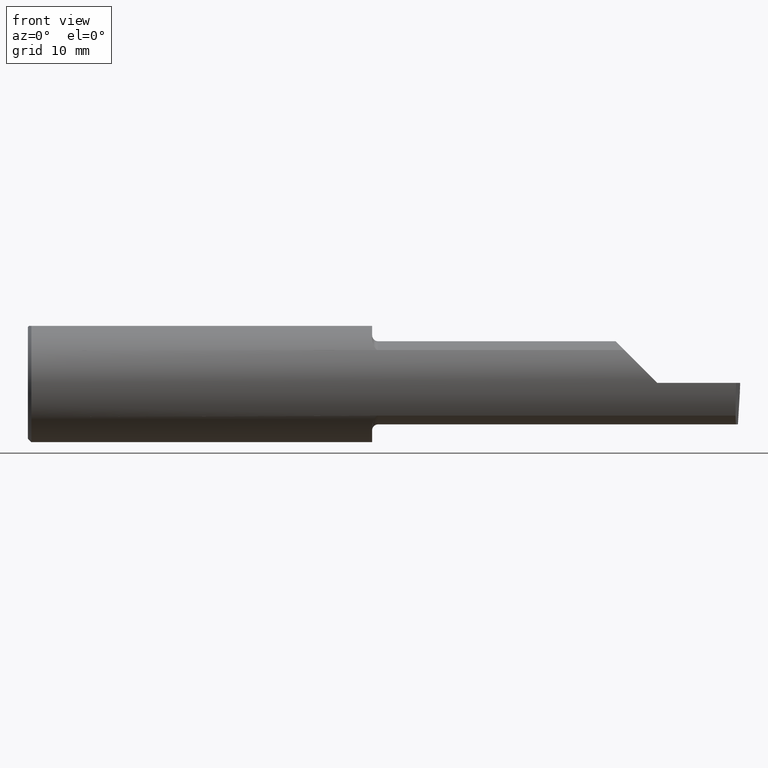
[diagram: clean part render]
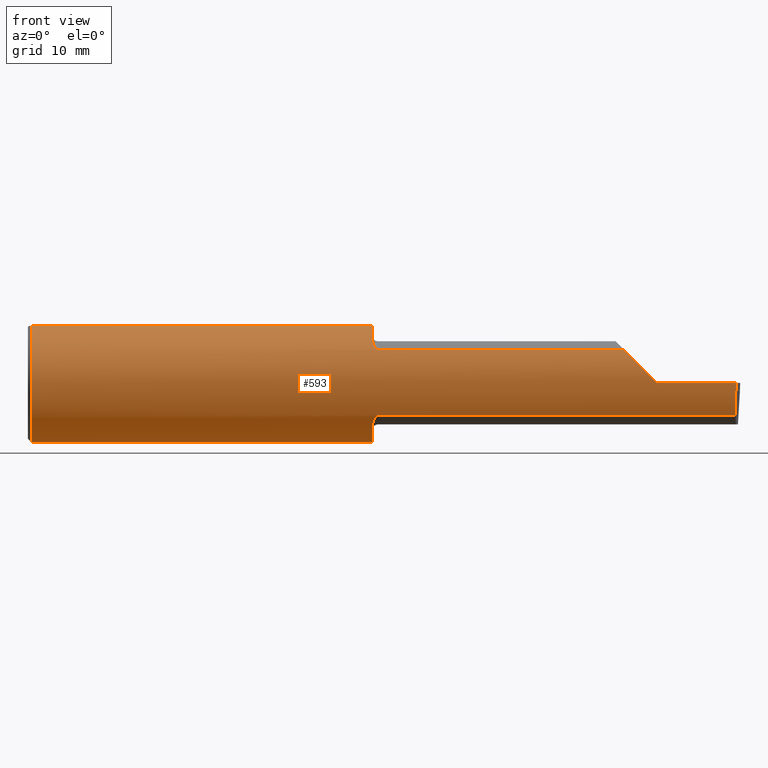
[diagram: same view with one face highlighted and labeled with its STEP entity id]
A machine part, front view. The second image highlights one B-rep face of the part: STEP entity #593.
In plain terms, the highlighted cylindrical surface (partial cylindrical patch) has radius 6.3462 mm, axis along (-1, -0, -0).
Its self-contained STEP definition (entity closure, byte-faithful):
#1 = EDGE_CURVE ( 'NONE', #758, #406, #473, .T. ) ;
#3 = AXIS2_PLACEMENT_3D ( 'NONE', #40, #231, #774 ) ;
#17 = B_SPLINE_CURVE_WITH_KNOTS ( 'NONE', 3,
 ( #380, #457, #759, #579, #151, #18, #387, #635, #332, #762, #214, #453 ),
 .UNSPECIFIED., .F., .F.,
 ( 4, 2, 2, 2, 2, 4 ),
 ( 1.964491429041408085E-07, 0.0001260981470478291519, 0.0002519998449527541240, 0.0005038032407626173497, 0.001007410032382343584, 0.002014623615621801908 ),
 .UNSPECIFIED. ) ;
#18 = CARTESIAN_POINT ( 'NONE',  ( 1.464302603425052585, -0.2041009206016214661, -0.1441313430770039816 ) ) ;
#22 = VERTEX_POINT ( 'NONE', #52 ) ;
#34 = CARTESIAN_POINT ( 'NONE',  ( 2.977412177158956563, -0.2496672875357696664, -0.1999314649951114686 ) ) ;
#39 = DIRECTION ( 'NONE',  ( 1.000000000000000000, 0.000000000000000000, 0.000000000000000000 ) ) ;
#40 = CARTESIAN_POINT ( 'NONE',  ( 0.01499999999999999944, 0.000000000000000000, 0.000000000000000000 ) ) ;
#42 = CARTESIAN_POINT ( 'NONE',  ( 2.174500000000000099, -0.2080850024789291652, -0.1382955322609665250 ) ) ;
#43 = CARTESIAN_POINT ( 'NONE',  ( 0.000000000000000000, -0.06997856814768359246, 0.2398500000000000076 ) ) ;
#44 = CIRCLE ( 'NONE', #56, 0.2498499999999999888 ) ;
#52 = CARTESIAN_POINT ( 'NONE',  ( 2.982644377562602589, -0.2498499999999999610, 1.813681607540488003E-17 ) ) ;
#56 = AXIS2_PLACEMENT_3D ( 'NONE', #282, #160, #95 ) ;
#59 = CARTESIAN_POINT ( 'NONE',  ( 1.450000000000000178, -0.1616050818046604332, 0.1905487340154980169 ) ) ;
#65 = CARTESIAN_POINT ( 'NONE',  ( 2.980479240051444378, -0.2080850024789291652, -0.1382955322609665250 ) ) ;
#70 = CARTESIAN_POINT ( 'NONE',  ( 1.474999999999999867, -0.2080850024789292485, 0.1382955322609664972 ) ) ;
#71 = CARTESIAN_POINT ( 'NONE',  ( 4.499279347985559139E-32, -0.2498499999999999610, 3.673940397442053459E-16 ) ) ;
#74 = CARTESIAN_POINT ( 'NONE',  ( 2.511704467739034552, -0.2080850024789292485, 0.1382955322609664139 ) ) ;
#86 = VERTEX_POINT ( 'NONE', #65 ) ;
#90 = CYLINDRICAL_SURFACE ( 'NONE', #255, 0.2498499999999999888 ) ;
#93 = CARTESIAN_POINT ( 'NONE',  ( 0.01499999999999999944, 0.000000000000000000, -0.2498499999999999888 ) ) ;
#95 = DIRECTION ( 'NONE',  ( 0.000000000000000000, 0.000000000000000000, 1.000000000000000000 ) ) ;
#98 = CARTESIAN_POINT ( 'NONE',  ( 2.980602402804240381, -0.2354324170447328890, -0.09714751587400699551 ) ) ;
#101 = CARTESIAN_POINT ( 'NONE',  ( 1.450000000000000178, 0.06997856814768360634, 0.2398500000000000076 ) ) ;
#108 = ORIENTED_EDGE ( 'NONE', *, *, #218, .F. ) ;
#110 = DIRECTION ( 'NONE',  ( -1.000000000000000000, -0.000000000000000000, -0.000000000000000000 ) ) ;
#115 = ORIENTED_EDGE ( 'NONE', *, *, #727, .T. ) ;
#118 = CARTESIAN_POINT ( 'NONE',  ( 1.474999999999999867, -0.2080850024789292485, 0.1382955322609664972 ) ) ;
#119 = AXIS2_PLACEMENT_3D ( 'NONE', #175, #125, #737 ) ;
#124 = EDGE_CURVE ( 'NONE', #22, #259, #161, .T. ) ;
#125 = DIRECTION ( 'NONE',  ( 1.000000000000000000, 0.000000000000000000, 0.000000000000000000 ) ) ;
#141 = ORIENTED_EDGE ( 'NONE', *, *, #582, .F. ) ;
#143 = CARTESIAN_POINT ( 'NONE',  ( 2.980479240051444378, -0.2080850024789291652, -0.1382955322609665250 ) ) ;
#151 = CARTESIAN_POINT ( 'NONE',  ( 1.467611663768900065, -0.2061921161193830399, -0.1411075319999376410 ) ) ;
#156 = DIRECTION ( 'NONE',  ( 0.000000000000000000, 0.000000000000000000, 1.000000000000000000 ) ) ;
#160 = DIRECTION ( 'NONE',  ( -1.000000000000000000, -0.000000000000000000, -0.000000000000000000 ) ) ;
#161 = LINE ( 'NONE', #71, #223 ) ;
#168 = CARTESIAN_POINT ( 'NONE',  ( 1.450000000000000178, -0.1665641037263009272, 0.1863429692936361126 ) ) ;
#174 = CARTESIAN_POINT ( 'NONE',  ( 1.452968662030528657, -0.1849684355203377595, 0.1680843977756267538 ) ) ;
#175 = CARTESIAN_POINT ( 'NONE',  ( 1.450000000000000178, 0.000000000000000000, 0.000000000000000000 ) ) ;
#180 = VERTEX_POINT ( 'NONE', #93 ) ;
#181 = CARTESIAN_POINT ( 'NONE',  ( 1.451849548162864600, -0.1805300287242674606, 0.1728462070311780341 ) ) ;
#183 = ORIENTED_EDGE ( 'NONE', *, *, #777, .F. ) ;
#186 = VECTOR ( 'NONE', #537, 39.37007874015748143 ) ;
#193 =( BOUNDED_CURVE ( )  B_SPLINE_CURVE ( 3, ( #143, #98, #689, #327 ),
 .UNSPECIFIED., .F., .T. ) 
 B_SPLINE_CURVE_WITH_KNOTS ( ( 4, 4 ),
 ( 0.05713034791898994463, 0.6418805321923491958 ),
 .UNSPECIFIED. ) 
 CURVE ( )  GEOMETRIC_REPRESENTATION_ITEM ( )  RATIONAL_B_SPLINE_CURVE ( ( 1.000000000000000000, 0.9717080070095445166, 0.9717080070095445166, 1.000000000000000000 ) ) 
 REPRESENTATION_ITEM ( '' )  );
#197 = CARTESIAN_POINT ( 'NONE',  ( 1.450000000000000178, 0.000000000000000000, 0.000000000000000000 ) ) ;
#207 = EDGE_CURVE ( 'NONE', #86, #219, #193, .T. ) ;
#213 = ORIENTED_EDGE ( 'NONE', *, *, #614, .F. ) ;
#214 = CARTESIAN_POINT ( 'NONE',  ( 1.450000000000000400, -0.1716188362992556171, -0.1820560320165480195 ) ) ;
#216 = DIRECTION ( 'NONE',  ( -1.000000000000000000, -0.000000000000000000, -0.000000000000000000 ) ) ;
#218 = EDGE_CURVE ( 'NONE', #378, #337, #750, .T. ) ;
#219 = VERTEX_POINT ( 'NONE', #322 ) ;
#223 = VECTOR ( 'NONE', #753, 39.37007874015748143 ) ;
#229 = LINE ( 'NONE', #34, #509 ) ;
#231 = DIRECTION ( 'NONE',  ( -1.000000000000000000, -0.000000000000000000, -0.000000000000000000 ) ) ;
#234 = LINE ( 'NONE', #470, #621 ) ;
#255 = AXIS2_PLACEMENT_3D ( 'NONE', #335, #216, #156 ) ;
#259 = VERTEX_POINT ( 'NONE', #382 ) ;
#262 = DIRECTION ( 'NONE',  ( 1.000000000000000000, 0.000000000000000000, 0.000000000000000000 ) ) ;
#282 = CARTESIAN_POINT ( 'NONE',  ( 0.01499999999999999944, 0.000000000000000000, 0.000000000000000000 ) ) ;
#287 = DIRECTION ( 'NONE',  ( -1.000000000000000000, -0.000000000000000000, -0.000000000000000000 ) ) ;
#288 = CARTESIAN_POINT ( 'NONE',  ( 1.458182335268384699, -0.1972192205116131691, 0.1535061413537209540 ) ) ;
#310 = EDGE_CURVE ( 'NONE', #180, #456, #409, .T. ) ;
#317 = EDGE_CURVE ( 'NONE', #337, #718, #660, .T. ) ;
#320 = LINE ( 'NONE', #42, #480 ) ;
#322 = CARTESIAN_POINT ( 'NONE',  ( 2.982632426700502215, -0.2498495826666993769, -0.0004566631977452191267 ) ) ;
#327 = CARTESIAN_POINT ( 'NONE',  ( 2.982632426700502215, -0.2498495826666993769, -0.0004566631977452191267 ) ) ;
#332 = CARTESIAN_POINT ( 'NONE',  ( 1.456147634408387903, -0.1932733126899460752, -0.1584637047788196307 ) ) ;
#334 = EDGE_CURVE ( 'NONE', #406, #460, #757, .T. ) ;
#335 = CARTESIAN_POINT ( 'NONE',  ( 0.000000000000000000, 0.000000000000000000, 0.000000000000000000 ) ) ;
#337 = VERTEX_POINT ( 'NONE', #101 ) ;
#342 = EDGE_CURVE ( 'NONE', #456, #758, #408, .T. ) ;
#351 = CARTESIAN_POINT ( 'NONE',  ( 2.650000000000000355, -0.2498499999999999610, 4.286263797015727350E-17 ) ) ;
#373 = CARTESIAN_POINT ( 'NONE',  ( 0.01499999999999999944, -0.06997856814768359246, 0.2398500000000000076 ) ) ;
#378 = VERTEX_POINT ( 'NONE', #498 ) ;
#380 = CARTESIAN_POINT ( 'NONE',  ( 1.474999999999999867, -0.2080850024789291375, -0.1382955322609665805 ) ) ;
#382 = CARTESIAN_POINT ( 'NONE',  ( 2.650000000000000355, -0.2498499999999999610, 4.286263797015727350E-17 ) ) ;
#387 = CARTESIAN_POINT ( 'NONE',  ( 1.462579853086618975, -0.2024300470081735470, -0.1464774911482684128 ) ) ;
#396 = AXIS2_PLACEMENT_3D ( 'NONE', #197, #262, #437 ) ;
#405 = CARTESIAN_POINT ( 'NONE',  ( 1.450000000000000178, -0.1616050818046604332, 0.1905487340154980169 ) ) ;
#406 = VERTEX_POINT ( 'NONE', #59 ) ;
#408 = LINE ( 'NONE', #43, #186 ) ;
#409 = CIRCLE ( 'NONE', #3, 0.2498499999999999888 ) ;
#412 = CARTESIAN_POINT ( 'NONE',  ( 0.01499999999999998036, 0.06997856814768359246, 0.2398500000000000076 ) ) ;
#413 = CARTESIAN_POINT ( 'NONE',  ( 1.471718393013769166, -0.2077830475237242291, 0.1387513848711936504 ) ) ;
#417 = CARTESIAN_POINT ( 'NONE',  ( 1.456159563508734545, -0.1933019864360849827, 0.1584298865564831571 ) ) ;
#437 = DIRECTION ( 'NONE',  ( 0.000000000000000000, 0.000000000000000000, -1.000000000000000000 ) ) ;
#448 = ORIENTED_EDGE ( 'NONE', *, *, #124, .T. ) ;
#453 = CARTESIAN_POINT ( 'NONE',  ( 1.450000000000000178, -0.1616050818046604332, -0.1905487340154980169 ) ) ;
#456 = VERTEX_POINT ( 'NONE', #373 ) ;
#457 = CARTESIAN_POINT ( 'NONE',  ( 1.473318040126429640, -0.2080850024789291375, -0.1382955322609666915 ) ) ;
#460 = VERTEX_POINT ( 'NONE', #70 ) ;
#470 = CARTESIAN_POINT ( 'NONE',  ( 2.174500000000000099, -0.2080850024789291652, 0.1382955322609665250 ) ) ;
#473 = CIRCLE ( 'NONE', #119, 0.2498499999999999888 ) ;
#476 = CARTESIAN_POINT ( 'NONE',  ( 1.450000000000000178, -0.06997856814768374512, 0.2398500000000000076 ) ) ;
#480 = VECTOR ( 'NONE', #287, 39.37007874015748143 ) ;
#498 = CARTESIAN_POINT ( 'NONE',  ( 1.450000000000000178, -0.1616050818046604332, -0.1905487340154980169 ) ) ;
#502 = ORIENTED_EDGE ( 'NONE', *, *, #310, .F. ) ;
#508 =( BOUNDED_CURVE ( )  B_SPLINE_CURVE ( 3, ( #351, #659, #778, #599 ),
 .UNSPECIFIED., .F., .T. ) 
 B_SPLINE_CURVE_WITH_KNOTS ( ( 4, 4 ),
 ( 4.712388980384689674, 5.298966915116346321 ),
 .UNSPECIFIED. ) 
 CURVE ( )  GEOMETRIC_REPRESENTATION_ITEM ( )  RATIONAL_B_SPLINE_CURVE ( ( 1.000000000000000000, 0.9715321379117538569, 0.9715321379117538569, 1.000000000000000000 ) ) 
 REPRESENTATION_ITEM ( '' )  );
#509 = VECTOR ( 'NONE', #654, 39.37007874015748854 ) ;
#528 = CARTESIAN_POINT ( 'NONE',  ( 1.462616400345755574, -0.2024684335577103256, 0.1464246884265637816 ) ) ;
#531 = CARTESIAN_POINT ( 'NONE',  ( 1.474999999999999867, -0.2080850024789291375, -0.1382955322609665805 ) ) ;
#532 = CARTESIAN_POINT ( 'NONE',  ( 1.468876997637614590, -0.2068363917296601184, 0.1401586554522229189 ) ) ;
#537 = DIRECTION ( 'NONE',  ( 1.000000000000000000, 0.000000000000000000, 0.000000000000000000 ) ) ;
#543 = ORIENTED_EDGE ( 'NONE', *, *, #788, .T. ) ;
#579 = CARTESIAN_POINT ( 'NONE',  ( 1.468863362722770516, -0.2068301641248770639, -0.1401678546132359982 ) ) ;
#582 = EDGE_CURVE ( 'NONE', #682, #378, #17, .T. ) ;
#589 = ORIENTED_EDGE ( 'NONE', *, *, #1, .F. ) ;
#593 = ADVANCED_FACE ( 'NONE', ( #638 ), #90, .T. ) ;
#599 = CARTESIAN_POINT ( 'NONE',  ( 2.511704467739034552, -0.2080850024789292485, 0.1382955322609664139 ) ) ;
#609 = VERTEX_POINT ( 'NONE', #74 ) ;
#614 = EDGE_CURVE ( 'NONE', #86, #682, #320, .T. ) ;
#620 = ORIENTED_EDGE ( 'NONE', *, *, #334, .F. ) ;
#621 = VECTOR ( 'NONE', #39, 39.37007874015748143 ) ;
#635 = CARTESIAN_POINT ( 'NONE',  ( 1.458176740666625282, -0.1972027065478073327, -0.1535263573771913914 ) ) ;
#638 = FACE_OUTER_BOUND ( 'NONE', #690, .T. ) ;
#640 = EDGE_CURVE ( 'NONE', #460, #609, #234, .T. ) ;
#654 = DIRECTION ( 'NONE',  ( 0.02616100201822768243, -0.0009135623211515309658, 0.9996573249755575929 ) ) ;
#659 = CARTESIAN_POINT ( 'NONE',  ( 2.600434159100403875, -0.2498499999999999055, 0.04956584089959691769 ) ) ;
#660 = LINE ( 'NONE', #714, #722 ) ;
#665 = ORIENTED_EDGE ( 'NONE', *, *, #207, .T. ) ;
#682 = VERTEX_POINT ( 'NONE', #531 ) ;
#689 = CARTESIAN_POINT ( 'NONE',  ( 2.981341028891338230, -0.2497592792593404665, -0.04986346618387292595 ) ) ;
#690 = EDGE_LOOP ( 'NONE', ( #543, #448, #115, #761, #620, #589, #768, #502, #183, #694, #108, #141, #213, #665 ) ) ;
#694 = ORIENTED_EDGE ( 'NONE', *, *, #317, .F. ) ;
#710 = CARTESIAN_POINT ( 'NONE',  ( 1.464343523383978996, -0.2041337200786083328, 0.1440846171672511833 ) ) ;
#714 = CARTESIAN_POINT ( 'NONE',  ( 0.000000000000000000, 0.06997856814768359246, 0.2398500000000000076 ) ) ;
#718 = VERTEX_POINT ( 'NONE', #412 ) ;
#722 = VECTOR ( 'NONE', #110, 39.37007874015748143 ) ;
#727 = EDGE_CURVE ( 'NONE', #259, #609, #508, .T. ) ;
#732 = CARTESIAN_POINT ( 'NONE',  ( 1.450367168219774294, -0.1713400252854603567, 0.1819601557798505298 ) ) ;
#737 = DIRECTION ( 'NONE',  ( 0.000000000000000000, 0.000000000000000000, -1.000000000000000000 ) ) ;
#750 = CIRCLE ( 'NONE', #396, 0.2498499999999999888 ) ;
#753 = DIRECTION ( 'NONE',  ( -1.000000000000000000, -0.000000000000000000, -0.000000000000000000 ) ) ;
#757 = B_SPLINE_CURVE_WITH_KNOTS ( 'NONE', 3,
 ( #405, #168, #732, #181, #174, #417, #288, #528, #710, #786, #532, #413, #779, #118 ),
 .UNSPECIFIED., .F., .F.,
 ( 4, 2, 2, 2, 2, 2, 4 ),
 ( 0.0003834465838148164380, 0.0008781406165086606559, 0.001372834649202504982, 0.001867528681896349092, 0.002114875698243277001, 0.002238549206416748111, 0.002362222714590219656 ),
 .UNSPECIFIED. ) ;
#758 = VERTEX_POINT ( 'NONE', #476 ) ;
#759 = CARTESIAN_POINT ( 'NONE',  ( 1.471700027347579320, -0.2077785947292768720, -0.1387580622202825020 ) ) ;
#761 = ORIENTED_EDGE ( 'NONE', *, *, #640, .F. ) ;
#762 = CARTESIAN_POINT ( 'NONE',  ( 1.451385488563269988, -0.1808287530430325862, -0.1728790649396287349 ) ) ;
#768 = ORIENTED_EDGE ( 'NONE', *, *, #342, .F. ) ;
#774 = DIRECTION ( 'NONE',  ( 0.000000000000000000, 0.000000000000000000, 1.000000000000000000 ) ) ;
#777 = EDGE_CURVE ( 'NONE', #718, #180, #44, .T. ) ;
#778 = CARTESIAN_POINT ( 'NONE',  ( 2.552984868485333347, -0.2355204011147992438, 0.09701513151466735485 ) ) ;
#779 = CARTESIAN_POINT ( 'NONE',  ( 1.473329956043142985, -0.2080850024798590603, 0.1382955322595675884 ) ) ;
#786 = CARTESIAN_POINT ( 'NONE',  ( 1.467647060162628581, -0.2062109266231182125, 0.1410799729252290580 ) ) ;
#788 = EDGE_CURVE ( 'NONE', #219, #22, #229, .T. ) ;